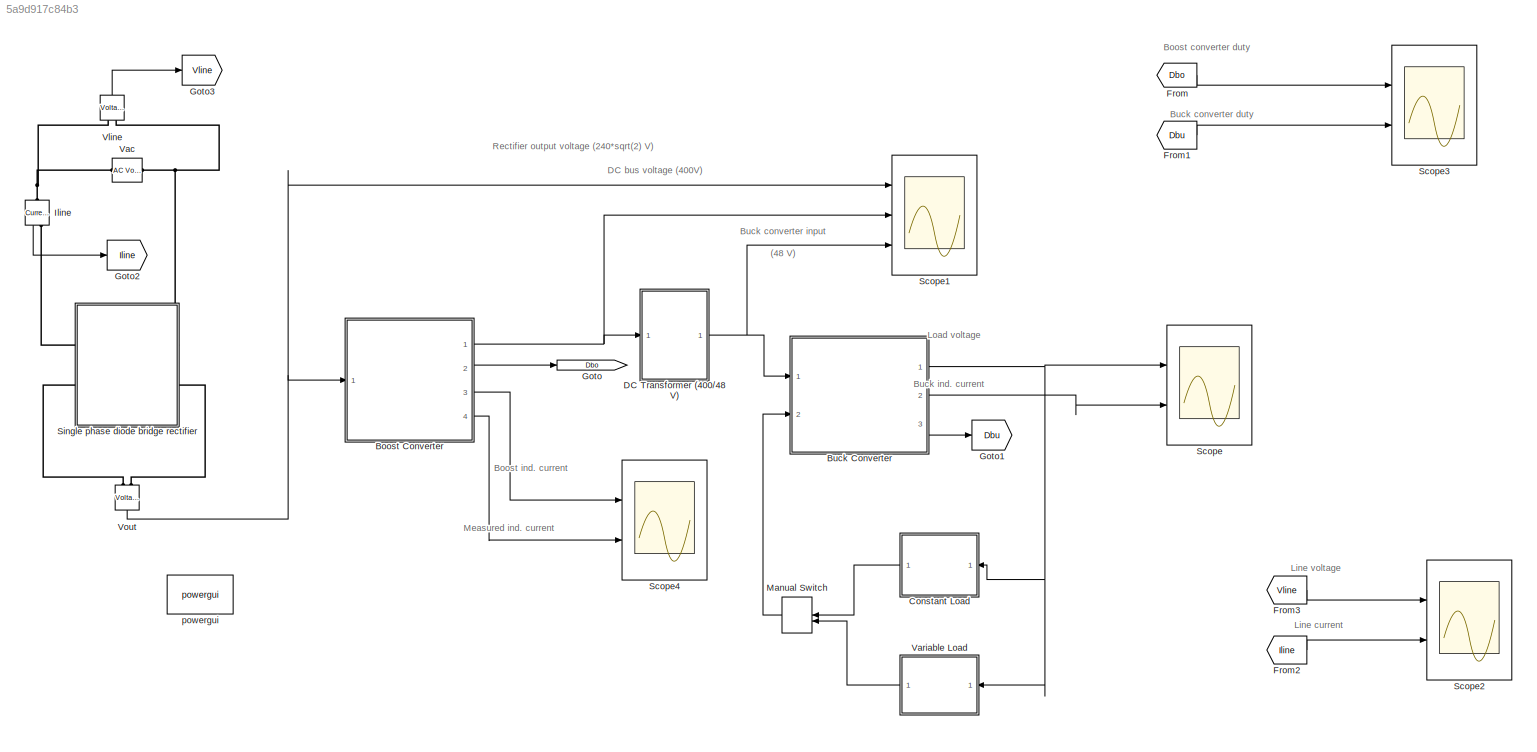
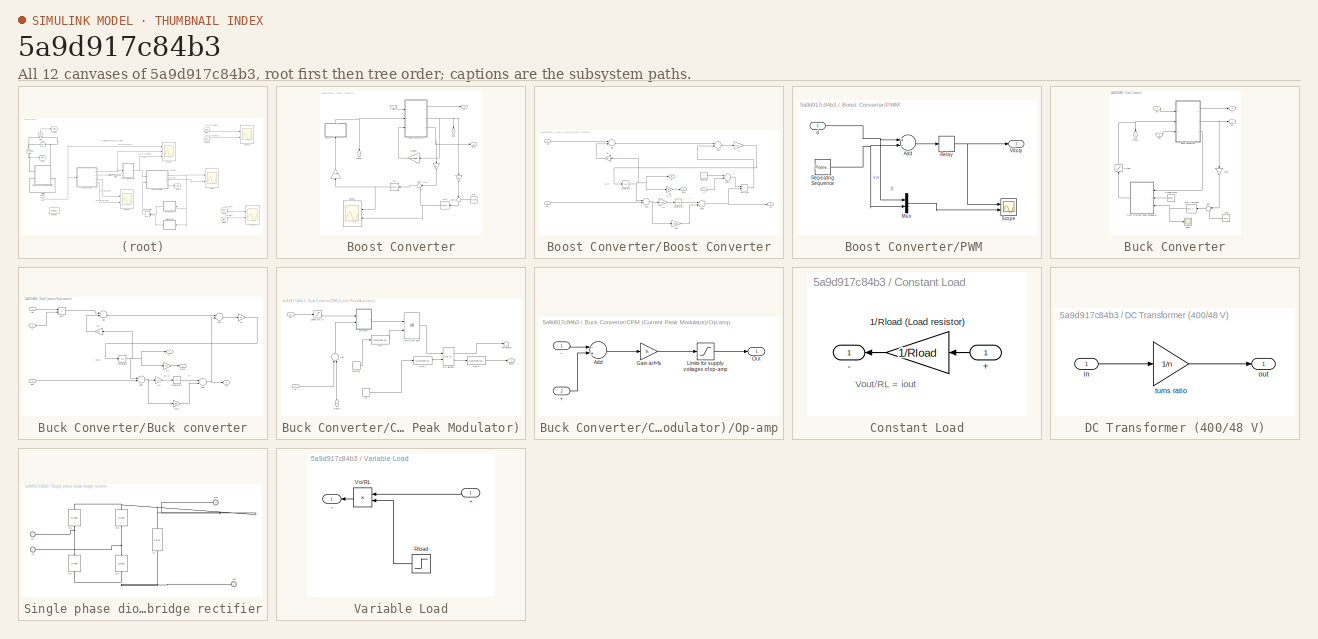
[diagram: thumbnail index - all 12 canvases of the model, root first then tree order]
MODEL slx_5a9d917c84b3
KIND model
CONFIG AbsTol = auto
CONFIG FixedStep = auto
CONFIG MaxStep = 1/fs1
CONFIG MinStep = auto
CONFIG RelTol = 1/fs
CONFIG SampleTimeConstraint = Unconstrained
CONFIG Solver = ode15s
CONFIG SolverMode = Auto
CONFIG SolverName = ode15s
CONFIG StartTime = 0.0
CONFIG StopTime = 0.2
BLOCK [SubSystem] Boost Converter
  Ports = [1, 4]
  RequestExecContextInheritance = off
  Variant = off
BLOCK [Gain] Boost Converter/  
  Gain = Rs1
  OutDataTypeStr = Inherit: Inherit via internal rule
  ParamDataTypeStr = Inherit: Inherit via internal rule
  SaturateOnIntegerOverflow = off
BLOCK [Gain] Boost Converter/     
  Gain = 1/VM
  OutDataTypeStr = Inherit: Inherit via internal rule
  ParamDataTypeStr = Inherit: Inherit via internal rule
  SaturateOnIntegerOverflow = off
BLOCK [Gain] Boost Converter/           
  Gain = H1
  OutDataTypeStr = Inherit: Inherit via internal rule
  ParamDataTypeStr = Inherit: Inherit via internal rule
  SaturateOnIntegerOverflow = off
BLOCK [Gain] Boost Converter/  1//Rload
  Gain = 1/Rload1
  OutDataTypeStr = Inherit: Inherit via internal rule
  ParamDataTypeStr = Inherit: Inherit via internal rule
  SaturateOnIntegerOverflow = off
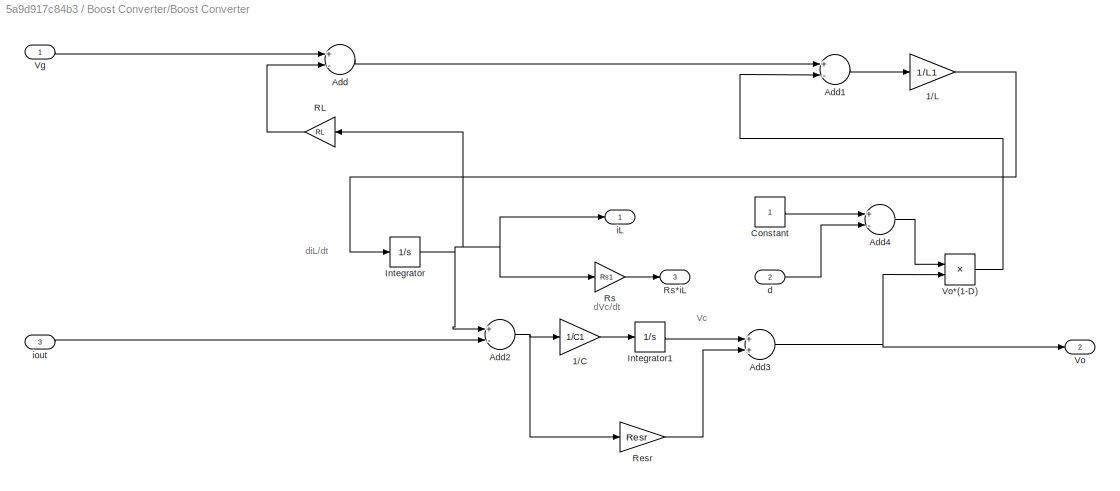
BLOCK [SubSystem] Boost Converter/Boost Converter
  Ports = [3, 3]
  RequestExecContextInheritance = off
  Variant = off
BLOCK [Gain] Boost Converter/Boost Converter/1//C
  Gain = 1/C1
  OutDataTypeStr = Inherit: Inherit via internal rule
  ParamDataTypeStr = Inherit: Inherit via internal rule
  SaturateOnIntegerOverflow = off
BLOCK [Gain] Boost Converter/Boost Converter/1//L
  Gain = 1/L1
  OutDataTypeStr = Inherit: Inherit via internal rule
  ParamDataTypeStr = Inherit: Inherit via internal rule
  SaturateOnIntegerOverflow = off
BLOCK [Sum] Boost Converter/Boost Converter/Add
  InputSameDT = off
  Inputs = +-
  OutDataTypeStr = Inherit: Inherit via internal rule
  Ports = [2, 1]
  SaturateOnIntegerOverflow = off
BLOCK [Sum] Boost Converter/Boost Converter/Add1
  InputSameDT = off
  Inputs = +-
  OutDataTypeStr = Inherit: Inherit via internal rule
  Ports = [2, 1]
  SaturateOnIntegerOverflow = off
BLOCK [Sum] Boost Converter/Boost Converter/Add2
  InputSameDT = off
  Inputs = +-
  OutDataTypeStr = Inherit: Inherit via internal rule
  Ports = [2, 1]
  SaturateOnIntegerOverflow = off
BLOCK [Sum] Boost Converter/Boost Converter/Add3
  InputSameDT = off
  OutDataTypeStr = Inherit: Inherit via internal rule
  Ports = [2, 1]
  SaturateOnIntegerOverflow = off
BLOCK [Sum] Boost Converter/Boost Converter/Add4
  InputSameDT = off
  Inputs = +-
  OutDataTypeStr = Inherit: Inherit via internal rule
  Ports = [2, 1]
  SaturateOnIntegerOverflow = off
BLOCK [Constant] Boost Converter/Boost Converter/Constant
BLOCK [Integrator] Boost Converter/Boost Converter/Integrator
  Ports = [1, 1]
BLOCK [Integrator] Boost Converter/Boost Converter/Integrator1
  Ports = [1, 1]
  UpperSaturationLimit = Vo
BLOCK [Gain] Boost Converter/Boost Converter/RL
  Gain = RL
  OutDataTypeStr = Inherit: Inherit via internal rule
  ParamDataTypeStr = Inherit: Inherit via internal rule
  SaturateOnIntegerOverflow = off
BLOCK [Gain] Boost Converter/Boost Converter/Resr
  Gain = Resr
  OutDataTypeStr = Inherit: Inherit via internal rule
  ParamDataTypeStr = Inherit: Inherit via internal rule
  SaturateOnIntegerOverflow = off
BLOCK [Gain] Boost Converter/Boost Converter/Rs
  Gain = Rs1
  OutDataTypeStr = Inherit: Inherit via internal rule
  ParamDataTypeStr = Inherit: Inherit via internal rule
  SaturateOnIntegerOverflow = off
BLOCK [Outport] Boost Converter/Boost Converter/Rs*iL
  IconDisplay = Port number
  Port = 3
BLOCK [Inport] Boost Converter/Boost Converter/Vg
  IconDisplay = Port number
BLOCK [Outport] Boost Converter/Boost Converter/Vo
  IconDisplay = Port number
  Port = 2
BLOCK [Product] Boost Converter/Boost Converter/Vo*(1-D)
  InputSameDT = off
  OutDataTypeStr = Inherit: Inherit via internal rule
  Ports = [2, 1]
  RndMeth = Floor
  SaturateOnIntegerOverflow = off
BLOCK [Inport] Boost Converter/Boost Converter/d
  IconDisplay = Port number
  Port = 2
BLOCK [Outport] Boost Converter/Boost Converter/iL
  IconDisplay = Port number
BLOCK [Inport] Boost Converter/Boost Converter/iout
  IconDisplay = Port number
  Port = 3
BLOCK [Outport] Boost Converter/Dboost
  IconDisplay = Port number
  Port = 2
BLOCK [Reference] Boost Converter/Gci  REF=simulink/Continuous/PID Controller
  Ports = [1, 1]
  SourceBlock = simulink/Continuous/PID Controller
  SourceType = PID 1dof
BLOCK [Reference] Boost Converter/Gcv  REF=simulink/Continuous/PID Controller
  Ports = [1, 1]
  SourceBlock = simulink/Continuous/PID Controller
  SourceType = PID 1dof
BLOCK [SubSystem] Boost Converter/PWM 
  Ports = [1, 1]
  RequestExecContextInheritance = off
  Variant = off
BLOCK [Sum] Boost Converter/PWM /Add
  InputSameDT = off
  Inputs = +-
  OutDataTypeStr = Inherit: Inherit via internal rule
  Ports = [2, 1]
  SaturateOnIntegerOverflow = off
BLOCK [Mux] Boost Converter/PWM /Mux
  DisplayOption = bar
  Inputs = 2
  Ports = [2, 1]
BLOCK [Relay] Boost Converter/PWM /Relay
  InputProcessing = Elements as channels (sample based)
  ZeroCross = off
BLOCK [Reference] Boost Converter/PWM /Repeating Sequence  REF=simulink/Sources/Repeating
Sequence
  Ports = [0, 1]
  SourceBlock = simulink/Sources/Repeating\nSequence
  SourceType = Repeating table
BLOCK [Scope] Boost Converter/PWM /Scope
  NumInputPorts = 2
  Ports = [2]
  ScopeSpecificationString = Simulink.scopes.TimeScopeBlockCfg('CurrentConfiguration', extmgr.ConfigurationSet(extmgr.Configuration('Core','General UI',true),extmgr.Configuration('Core','Source UI',true),extmgr.Configuration('Sources','WiredSimulink',true),extmgr.Configuration('Visuals','Time Domain',true,'SerializedDisplays',{struct('MinYLimReal','-0.25557','MaxYLimReal','1.06293','YLabelReal','','MinYLimMag','0.00000','MaxY...<+2031ch>
BLOCK [Outport] Boost Converter/PWM /Vduty
  IconDisplay = Port number
BLOCK [Inport] Boost Converter/PWM /d
  IconDisplay = Port number
BLOCK [Outport] Boost Converter/Rs*iL
  IconDisplay = Port number
  Port = 4
BLOCK [Scope] Boost Converter/Scope4
  NumInputPorts = 2
  Ports = [2]
  ScopeSpecificationString = Simulink.scopes.TimeScopeBlockCfg('CurrentConfiguration', extmgr.ConfigurationSet(extmgr.Configuration('Core','General UI',true),extmgr.Configuration('Core','Source UI',true),extmgr.Configuration('Sources','WiredSimulink',true,'DataLoggingVariableName','ScopeData2'),extmgr.Configuration('Visuals','Time Domain',true,'SerializedDisplays',{struct('MinYLimReal','0.02367','MaxYLimReal','0.16567','YLabe...<+2049ch>
BLOCK [Sum] Boost Converter/Sum
  IconShape = round
  InputSameDT = off
  Inputs = |-+
  OutDataTypeStr = Inherit: Inherit via internal rule
  Ports = [2, 1]
  SaturateOnIntegerOverflow = off
BLOCK [Sum] Boost Converter/Sum1
  IconShape = round
  InputSameDT = off
  Inputs = |-+
  OutDataTypeStr = Inherit: Inherit via internal rule
  Ports = [2, 1]
  SaturateOnIntegerOverflow = off
BLOCK [Inport] Boost Converter/Vin
  IconDisplay = Port number
BLOCK [Outport] Boost Converter/Vout
  IconDisplay = Port number
BLOCK [Constant] Boost Converter/Vref
  Value = H1*Vo1
BLOCK [Outport] Boost Converter/iL
  IconDisplay = Port number
  Port = 3
BLOCK [SubSystem] Buck Converter
  Ports = [2, 3]
  RequestExecContextInheritance = off
  Variant = off
BLOCK [Saturate] Buck Converter/0-1 limit
  InputPortMap = u0
  LowerLimit = 0
  Ports = [1, 1]
  UpperLimit = 1
BLOCK [Reference] Buck Converter/Artificial ramp  REF=simulink/Sources/Repeating
Sequence
  Ports = [0, 1]
  SourceBlock = simulink/Sources/Repeating\nSequence
  SourceType = Repeating table
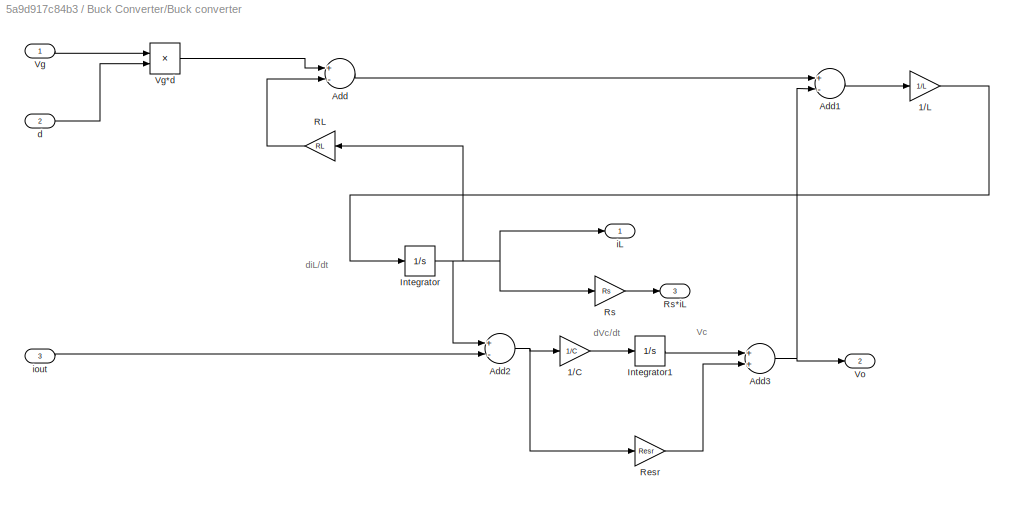
BLOCK [SubSystem] Buck Converter/Buck converter
  Ports = [3, 3]
  RequestExecContextInheritance = off
  Variant = off
BLOCK [Gain] Buck Converter/Buck converter/1//C
  Gain = 1/C
  OutDataTypeStr = Inherit: Inherit via internal rule
  ParamDataTypeStr = Inherit: Inherit via internal rule
  SaturateOnIntegerOverflow = off
BLOCK [Gain] Buck Converter/Buck converter/1//L
  Gain = 1/L
  OutDataTypeStr = Inherit: Inherit via internal rule
  ParamDataTypeStr = Inherit: Inherit via internal rule
  SaturateOnIntegerOverflow = off
BLOCK [Sum] Buck Converter/Buck converter/Add
  InputSameDT = off
  Inputs = +-
  OutDataTypeStr = Inherit: Inherit via internal rule
  Ports = [2, 1]
  SaturateOnIntegerOverflow = off
BLOCK [Sum] Buck Converter/Buck converter/Add1
  InputSameDT = off
  Inputs = +-
  OutDataTypeStr = Inherit: Inherit via internal rule
  Ports = [2, 1]
  SaturateOnIntegerOverflow = off
BLOCK [Sum] Buck Converter/Buck converter/Add2
  InputSameDT = off
  Inputs = +-
  OutDataTypeStr = Inherit: Inherit via internal rule
  Ports = [2, 1]
  SaturateOnIntegerOverflow = off
BLOCK [Sum] Buck Converter/Buck converter/Add3
  InputSameDT = off
  OutDataTypeStr = Inherit: Inherit via internal rule
  Ports = [2, 1]
  SaturateOnIntegerOverflow = off
BLOCK [Integrator] Buck Converter/Buck converter/Integrator
  Ports = [1, 1]
BLOCK [Integrator] Buck Converter/Buck converter/Integrator1
  Ports = [1, 1]
BLOCK [Gain] Buck Converter/Buck converter/RL
  Gain = RL
  OutDataTypeStr = Inherit: Inherit via internal rule
  ParamDataTypeStr = Inherit: Inherit via internal rule
  SaturateOnIntegerOverflow = off
BLOCK [Gain] Buck Converter/Buck converter/Resr
  Gain = Resr
  OutDataTypeStr = Inherit: Inherit via internal rule
  ParamDataTypeStr = Inherit: Inherit via internal rule
  SaturateOnIntegerOverflow = off
BLOCK [Gain] Buck Converter/Buck converter/Rs
  Gain = Rs
  OutDataTypeStr = Inherit: Inherit via internal rule
  ParamDataTypeStr = Inherit: Inherit via internal rule
  SaturateOnIntegerOverflow = off
BLOCK [Outport] Buck Converter/Buck converter/Rs*iL
  IconDisplay = Port number
  Port = 3
BLOCK [Inport] Buck Converter/Buck converter/Vg
  IconDisplay = Port number
BLOCK [Product] Buck Converter/Buck converter/Vg*d
  InputSameDT = off
  OutDataTypeStr = Inherit: Inherit via internal rule
  Ports = [2, 1]
  RndMeth = Floor
  SaturateOnIntegerOverflow = off
BLOCK [Outport] Buck Converter/Buck converter/Vo
  IconDisplay = Port number
  Port = 2
BLOCK [Inport] Buck Converter/Buck converter/d
  IconDisplay = Port number
  Port = 2
BLOCK [Outport] Buck Converter/Buck converter/iL
  IconDisplay = Port number
BLOCK [Inport] Buck Converter/Buck converter/iout
  IconDisplay = Port number
  Port = 3
BLOCK [SubSystem] Buck Converter/CPM (Current Peak Modulator)
  Ports = [3, 1]
  RequestExecContextInheritance = off
  Variant = off
BLOCK [Sum] Buck Converter/CPM (Current Peak Modulator)/Add
  InputSameDT = off
  OutDataTypeStr = Inherit: Inherit via internal rule
  Ports = [2, 1]
  SaturateOnIntegerOverflow = off
BLOCK [Logic] Buck Converter/CPM (Current Peak Modulator)/CMOS OR gate
  AllPortsSameDT = off
  Operator = OR
  OutDataTypeStr = boolean
  Ports = [2, 1]
BLOCK [DataTypeConversion] Buck Converter/CPM (Current Peak Modulator)/DTC
  LockScale = on
  OutDataTypeStr = boolean
  RndMeth = Floor
BLOCK [DataTypeConversion] Buck Converter/CPM (Current Peak Modulator)/DTC1
  LockScale = on
  OutDataTypeStr = boolean
  RndMeth = Floor
BLOCK [DataTypeConversion] Buck Converter/CPM (Current Peak Modulator)/DTC2
  LockScale = on
  OutDataTypeStr = double
  RndMeth = Floor
BLOCK [Saturate] Buck Converter/CPM (Current Peak Modulator)/Limits for Vc
  InputPortMap = u0
  LowerLimit = 0
  Ports = [1, 1]
  UpperLimit = Vcmax+Voffset
  ZeroCross = off
BLOCK [SubSystem] Buck Converter/CPM (Current Peak Modulator)/Op-amp
  Ports = [2, 1]
  RequestExecContextInheritance = off
  Variant = off
BLOCK [Inport] Buck Converter/CPM (Current Peak Modulator)/Op-amp/+
  IconDisplay = Port number
  Port = 2
BLOCK [Inport] Buck Converter/CPM (Current Peak Modulator)/Op-amp/-
  IconDisplay = Port number
BLOCK [Sum] Buck Converter/CPM (Current Peak Modulator)/Op-amp/Add
  InputSameDT = off
  Inputs = -+
  OutDataTypeStr = Inherit: Inherit via internal rule
  Ports = [2, 1]
  SaturateOnIntegerOverflow = off
BLOCK [Gain] Buck Converter/CPM (Current Peak Modulator)/Op-amp/Gain at f=fs
  Gain = fs
  OutDataTypeStr = Inherit: Inherit via internal rule
  ParamDataTypeStr = Inherit: Inherit via internal rule
  SaturateOnIntegerOverflow = off
BLOCK [Saturate] Buck Converter/CPM (Current Peak Modulator)/Op-amp/Limits for supply voltages of op-amp 
  InputPortMap = u0
  LowerLimit = 0
  Ports = [1, 1]
  UpperLimit = Vcc
BLOCK [Outport] Buck Converter/CPM (Current Peak Modulator)/Op-amp/Out
  IconDisplay = Port number
BLOCK [Outport] Buck Converter/CPM (Current Peak Modulator)/PWM
  IconDisplay = Port number
BLOCK [Reference] Buck Converter/CPM (Current Peak Modulator)/S-R Flip-Flop  REF=simulink_extras/Flip Flops/S-R
Flip-Flop
  Ports = [2, 2]
  SourceBlock = simulink_extras/Flip Flops/S-R\nFlip-Flop
  SourceType = SRFlipFlop
BLOCK [Terminator] Buck Converter/CPM (Current Peak Modulator)/Terminator
BLOCK [Inport] Buck Converter/CPM (Current Peak Modulator)/Vc
  IconDisplay = Port number
  Port = 3
BLOCK [Inport] Buck Converter/CPM (Current Peak Modulator)/Vramp
  IconDisplay = Port number
  Port = 2
BLOCK [Inport] Buck Converter/CPM (Current Peak Modulator)/Vs
  IconDisplay = Port number
BLOCK [DiscretePulseGenerator] Buck Converter/CPM (Current Peak Modulator)/clk
  Amplitude = 5
  Period = 1/fs
  Ports = [0, 1]
  PulseType = Time based
  PulseWidth = (Dmin+1e-10)*100
BLOCK [DiscretePulseGenerator] Buck Converter/CPM (Current Peak Modulator)/clk_dmax
  Amplitude = 5
  Period = 1/fs
  PhaseDelay = Dmax/fs
  Ports = [0, 1]
  PulseType = Time based
  PulseWidth = (1-Dmax)*100
BLOCK [Outport] Buck Converter/Dbuck
  IconDisplay = Port number
  Port = 3
BLOCK [Gain] Buck Converter/Gain
  Gain = H
  OutDataTypeStr = Inherit: Inherit via internal rule
  ParamDataTypeStr = Inherit: Inherit via internal rule
  SaturateOnIntegerOverflow = off
BLOCK [Outport] Buck Converter/IL
  IconDisplay = Port number
  Port = 2
BLOCK [Reference] Buck Converter/PID Controller  REF=simulink/Continuous/PID Controller
  Ports = [1, 1]
  SourceBlock = simulink/Continuous/PID Controller
  SourceType = PID 1dof
BLOCK [Scope] Buck Converter/Scope
  Ports = [1]
  ScopeSpecificationString = C++SS(StrPVP('SaveName','ScopeData3'))
BLOCK [Sum] Buck Converter/Sum
  IconShape = round
  InputSameDT = off
  Inputs = |-+
  OutDataTypeStr = Inherit: Inherit via internal rule
  Ports = [2, 1]
  SaturateOnIntegerOverflow = off
BLOCK [Inport] Buck Converter/Vg
  IconDisplay = Port number
BLOCK [Outport] Buck Converter/Vo
  IconDisplay = Port number
BLOCK [Constant] Buck Converter/Vref
  Value = Vo*H
BLOCK [Inport] Buck Converter/iout
  IconDisplay = Port number
  Port = 2
BLOCK [SubSystem] Constant Load
  Ports = [1, 1]
  RequestExecContextInheritance = off
  Variant = off
BLOCK [Inport] Constant Load/+
  IconDisplay = Port number
BLOCK [Outport] Constant Load/-
  IconDisplay = Port number
BLOCK [Gain] Constant Load/1//Rload (Load resistor)
  Gain = 1/Rload
  OutDataTypeStr = Inherit: Inherit via internal rule
  ParamDataTypeStr = Inherit: Inherit via internal rule
  SaturateOnIntegerOverflow = off
BLOCK [SubSystem] DC Transformer (400//48 V)
  Ports = [1, 1]
  RequestExecContextInheritance = off
  Variant = off
BLOCK [Inport] DC Transformer (400//48 V)/in
  IconDisplay = Port number
BLOCK [Outport] DC Transformer (400//48 V)/out
  IconDisplay = Port number
BLOCK [Gain] DC Transformer (400//48 V)/turns ratio
  Gain = 1/n
  OutDataTypeStr = Inherit: Inherit via internal rule
  ParamDataTypeStr = Inherit: Inherit via internal rule
  SaturateOnIntegerOverflow = off
BLOCK [From] From
  GotoTag = Dbo
BLOCK [From] From1
  GotoTag = Dbu
BLOCK [From] From2
  GotoTag = Iline
BLOCK [From] From3
  GotoTag = Vline
BLOCK [Goto] Goto
  GotoTag = Dbo
BLOCK [Goto] Goto1
  GotoTag = Dbu
BLOCK [Goto] Goto2
  GotoTag = Iline
BLOCK [Goto] Goto3
  GotoTag = Vline
BLOCK [Reference] Iline  REF=powerlib/Measurements/Current Measurement
  Ports = [0, 1, 0, 0, 0, 1, 1]
  SourceBlock = powerlib/Measurements/Current Measurement
  SourceType = Current Measurement
  UserDataPersistent = on
BLOCK [ManualSwitch] Manual Switch
  CurrentSetting = 0
BLOCK [Scope] Scope
  NumInputPorts = 2
  Ports = [2]
  ScopeSpecificationString = Simulink.scopes.TimeScopeBlockCfg('CurrentConfiguration', extmgr.ConfigurationSet(extmgr.Configuration('Core','General UI',true),extmgr.Configuration('Core','Source UI',true),extmgr.Configuration('Sources','WiredSimulink',true,'DataLoggingVariableName','ScopeData1'),extmgr.Configuration('Visuals','Time Domain',true,'SerializedDisplays',{struct('MinYLimReal','-2.70406','MaxYLimReal','24.33653','YLa...<+2081ch>
BLOCK [Scope] Scope1
  NumInputPorts = 3
  Ports = [3]
  ScopeSpecificationString = Simulink.scopes.TimeScopeBlockCfg('CurrentConfiguration', extmgr.ConfigurationSet(extmgr.Configuration('Core','General UI',true),extmgr.Configuration('Core','Source UI',true),extmgr.Configuration('Sources','WiredSimulink',true,'DataLoggingVariableName','ScopeData2'),extmgr.Configuration('Visuals','Time Domain',true,'SerializedDisplays',{struct('MinYLimReal','-42.25141','MaxYLimReal','380.26266','Y...<+2800ch>
BLOCK [Scope] Scope2
  NumInputPorts = 2
  Ports = [2]
  ScopeSpecificationString = Simulink.scopes.TimeScopeBlockCfg('CurrentConfiguration', extmgr.ConfigurationSet(extmgr.Configuration('Core','General UI',true),extmgr.Configuration('Core','Source UI',true),extmgr.Configuration('Sources','WiredSimulink',true,'DataLoggingVariableName','ScopeData3'),extmgr.Configuration('Visuals','Time Domain',true,'SerializedDisplays',{struct('MinYLimReal','-424.26407','MaxYLimReal','424.26407','...<+2061ch>
BLOCK [Scope] Scope3
  NumInputPorts = 2
  Ports = [2]
  ScopeSpecificationString = Simulink.scopes.TimeScopeBlockCfg('CurrentConfiguration', extmgr.ConfigurationSet(extmgr.Configuration('Core','General UI',true),extmgr.Configuration('Core','Source UI',true),extmgr.Configuration('Sources','WiredSimulink',true,'DataLoggingVariableName','ScopeData4'),extmgr.Configuration('Visuals','Time Domain',true,'SerializedDisplays',{struct('MinYLimReal','-0.04012','MaxYLimReal','1.11958','YLab...<+2410ch>
BLOCK [Scope] Scope4
  NumInputPorts = 2
  Ports = [2]
  ScopeSpecificationString = Simulink.scopes.TimeScopeBlockCfg('CurrentConfiguration', extmgr.ConfigurationSet(extmgr.Configuration('Core','General UI',true),extmgr.Configuration('Core','Source UI',true),extmgr.Configuration('Sources','WiredSimulink',true,'DataLoggingVariableName','ScopeData1'),extmgr.Configuration('Visuals','Time Domain',true,'SerializedDisplays',{struct('MinYLimReal','-26.90105','MaxYLimReal','57.93673','YL...<+2083ch>
BLOCK [SubSystem] Single phase diode bridge rectifier
  Ports = [0, 0, 0, 0, 0, 2, 2]
  RequestExecContextInheritance = off
  Variant = off
BLOCK [PMIOPort] Single phase diode bridge rectifier/+in
  Port = 1
  Side = Left
BLOCK [PMIOPort] Single phase diode bridge rectifier/+out
  Port = 3
  Side = Left
BLOCK [PMIOPort] Single phase diode bridge rectifier/-in
  Port = 2
  Side = Right
BLOCK [PMIOPort] Single phase diode bridge rectifier/-out
  Port = 4
  Side = Right
BLOCK [Reference] Single phase diode bridge rectifier/Cf  REF=powerlib/Elements/Series RLC Branch
  Ports = [0, 0, 0, 0, 0, 1, 1]
  SourceBlock = powerlib/Elements/Series RLC Branch
  SourceType = Series RLC Branch
BLOCK [Reference] Single phase diode bridge rectifier/D1  REF=powerlib/Power
Electronics/Diode
  Ports = [0, 0, 0, 0, 0, 1, 1]
  SourceBlock = powerlib/Power\nElectronics/Diode
  SourceType = Diode
BLOCK [Reference] Single phase diode bridge rectifier/D2  REF=powerlib/Power
Electronics/Diode
  Ports = [0, 0, 0, 0, 0, 1, 1]
  SourceBlock = powerlib/Power\nElectronics/Diode
  SourceType = Diode
BLOCK [Reference] Single phase diode bridge rectifier/D3  REF=powerlib/Power
Electronics/Diode
  Ports = [0, 0, 0, 0, 0, 1, 1]
  SourceBlock = powerlib/Power\nElectronics/Diode
  SourceType = Diode
BLOCK [Reference] Single phase diode bridge rectifier/D4  REF=powerlib/Power
Electronics/Diode
  Ports = [0, 0, 0, 0, 0, 1, 1]
  SourceBlock = powerlib/Power\nElectronics/Diode
  SourceType = Diode
BLOCK [Reference] Vac  REF=powerlib/Electrical
Sources/AC Voltage Source
  Ports = [0, 0, 0, 0, 0, 1, 1]
  SourceBlock = powerlib/Electrical\nSources/AC Voltage Source
  SourceType = AC Voltage Source
BLOCK [SubSystem] Variable Load
  Ports = [1, 1]
  RequestExecContextInheritance = off
  Variant = off
BLOCK [Inport] Variable Load/+
  IconDisplay = Port number
BLOCK [Outport] Variable Load/-
  IconDisplay = Port number
BLOCK [Step] Variable Load/Rload
  After = Rload/2
  Before = Rload
  SampleTime = 0
  Time = 0.1
BLOCK [Product] Variable Load/Vo//RL
  InputSameDT = off
  Inputs = */
  OutDataTypeStr = Inherit: Inherit via internal rule
  Ports = [2, 1]
  RndMeth = Floor
  SaturateOnIntegerOverflow = off
BLOCK [Reference] Vline  REF=powerlib/Measurements/Voltage Measurement
  Ports = [0, 1, 0, 0, 0, 2]
  SourceBlock = powerlib/Measurements/Voltage Measurement
  SourceType = Voltage Measurement
  UserDataPersistent = on
BLOCK [Reference] Vout  REF=powerlib/Measurements/Voltage Measurement
  Ports = [0, 1, 0, 0, 0, 2]
  SourceBlock = powerlib/Measurements/Voltage Measurement
  SourceType = Voltage Measurement
  UserDataPersistent = on
BLOCK [Reference] powergui  REF=powerlib/powergui
  Ports = []
  Priority = 1
  SourceBlock = powerlib/powergui
  SourceType = PSB option menu block
  UserDataPersistent = on
ANNOTATION (root): Boost converter duty
ANNOTATION (root): Boost ind. current
ANNOTATION (root): Buck ind. current
ANNOTATION (root): Buck converter duty
ANNOTATION (root): Buck converter input (48 V)
ANNOTATION (root): DC bus voltage (400V)
ANNOTATION (root): Line current
ANNOTATION (root): Line voltage
ANNOTATION (root): Load voltage
ANNOTATION (root): Measured ind. current
ANNOTATION (root): Rectifier output voltage (240*sqrt(2) V)
ANNOTATION Boost Converter: iL*Rs
ANNOTATION Boost Converter/Boost Converter: Vc
ANNOTATION Boost Converter/Boost Converter: dVc/dt
ANNOTATION Boost Converter/Boost Converter: diL/dt
ANNOTATION Boost Converter/PWM : d
ANNOTATION Buck Converter/Buck converter: Vc
ANNOTATION Buck Converter/Buck converter: dVc/dt
ANNOTATION Buck Converter/Buck converter: diL/dt
ANNOTATION Constant Load: Vout/RL = iout
LINE Boost Converter/           :1 -> Boost Converter/Sum1:1
LINE Boost Converter/     :1 -> Boost Converter/PWM :1
LINE Boost Converter/  1//Rload:1 -> Boost Converter/Boost Converter:3
LINE Boost Converter/  :1 -> Boost Converter/Sum:1
LINE Boost Converter/Boost Converter/1//C:1 -> Boost Converter/Boost Converter/Integrator1:1
LINE Boost Converter/Boost Converter/1//L:1 -> Boost Converter/Boost Converter/Integrator:1
LINE Boost Converter/Boost Converter/Add1:1 -> Boost Converter/Boost Converter/1//L:1
NET Boost Converter/Boost Converter/Add2:1 -> Boost Converter/Boost Converter/1//C:1, Boost Converter/Boost Converter/Resr:1
NET Boost Converter/Boost Converter/Add3:1 -> Boost Converter/Boost Converter/Vo*(1-D):2, Boost Converter/Boost Converter/Vo:1
LINE Boost Converter/Boost Converter/Add4:1 -> Boost Converter/Boost Converter/Vo*(1-D):1
LINE Boost Converter/Boost Converter/Add:1 -> Boost Converter/Boost Converter/Add1:1
LINE Boost Converter/Boost Converter/Constant:1 -> Boost Converter/Boost Converter/Add4:1
LINE Boost Converter/Boost Converter/Integrator1:1 -> Boost Converter/Boost Converter/Add3:1
NET Boost Converter/Boost Converter/Integrator:1 -> Boost Converter/Boost Converter/Add2:1, Boost Converter/Boost Converter/RL:1, Boost Converter/Boost Converter/Rs:1, Boost Converter/Boost Converter/iL:1
LINE Boost Converter/Boost Converter/RL:1 -> Boost Converter/Boost Converter/Add:2
LINE Boost Converter/Boost Converter/Resr:1 -> Boost Converter/Boost Converter/Add3:2
LINE Boost Converter/Boost Converter/Rs:1 -> Boost Converter/Boost Converter/Rs*iL:1
LINE Boost Converter/Boost Converter/Vg:1 -> Boost Converter/Boost Converter/Add:1
LINE Boost Converter/Boost Converter/Vo*(1-D):1 -> Boost Converter/Boost Converter/Add1:2
LINE Boost Converter/Boost Converter/d:1 -> Boost Converter/Boost Converter/Add4:2
LINE Boost Converter/Boost Converter/iout:1 -> Boost Converter/Boost Converter/Add2:2
LINE Boost Converter/Boost Converter:1 -> Boost Converter/iL:1
NET Boost Converter/Boost Converter:2 -> Boost Converter/           :1, Boost Converter/  1//Rload:1, Boost Converter/Vout:1
NET Boost Converter/Boost Converter:3 -> Boost Converter/  :1, Boost Converter/Rs*iL:1
NET Boost Converter/Gci:1 -> Boost Converter/     :1, Boost Converter/Scope4:1
NET Boost Converter/Gcv:1 -> Boost Converter/Scope4:2, Boost Converter/Sum:2
LINE Boost Converter/PWM /Add:1 -> Boost Converter/PWM /Relay:1
LINE Boost Converter/PWM /Mux:1 -> Boost Converter/PWM /Scope:2
NET Boost Converter/PWM /Relay:1 -> Boost Converter/PWM /Scope:1, Boost Converter/PWM /Vduty:1
NET Boost Converter/PWM /Repeating Sequence:1 -> Boost Converter/PWM /Add:2, Boost Converter/PWM /Mux:2
NET Boost Converter/PWM /d:1 -> Boost Converter/PWM /Add:1, Boost Converter/PWM /Mux:1
NET Boost Converter/PWM :1 -> Boost Converter/Boost Converter:2, Boost Converter/Dboost:1
LINE Boost Converter/Sum1:1 -> Boost Converter/Gcv:1
LINE Boost Converter/Sum:1 -> Boost Converter/Gci:1
LINE Boost Converter/Vin:1 -> Boost Converter/Boost Converter:1
LINE Boost Converter/Vref:1 -> Boost Converter/Sum1:2
NET Boost Converter:1 -> DC Transformer (400//48 V):1, Scope1:2
LINE Boost Converter:2 -> Goto:1
LINE Boost Converter:3 -> Scope4:1
LINE Boost Converter:4 -> Scope4:2
NET Buck Converter/0-1 limit:1 -> Buck Converter/Buck converter:2, Buck Converter/Dbuck:1
LINE Buck Converter/Artificial ramp:1 -> Buck Converter/CPM (Current Peak Modulator):2
LINE Buck Converter/Buck converter/1//C:1 -> Buck Converter/Buck converter/Integrator1:1
LINE Buck Converter/Buck converter/1//L:1 -> Buck Converter/Buck converter/Integrator:1
LINE Buck Converter/Buck converter/Add1:1 -> Buck Converter/Buck converter/1//L:1
NET Buck Converter/Buck converter/Add2:1 -> Buck Converter/Buck converter/1//C:1, Buck Converter/Buck converter/Resr:1
NET Buck Converter/Buck converter/Add3:1 -> Buck Converter/Buck converter/Add1:2, Buck Converter/Buck converter/Vo:1
LINE Buck Converter/Buck converter/Add:1 -> Buck Converter/Buck converter/Add1:1
LINE Buck Converter/Buck converter/Integrator1:1 -> Buck Converter/Buck converter/Add3:1
NET Buck Converter/Buck converter/Integrator:1 -> Buck Converter/Buck converter/Add2:1, Buck Converter/Buck converter/RL:1, Buck Converter/Buck converter/Rs:1, Buck Converter/Buck converter/iL:1
LINE Buck Converter/Buck converter/RL:1 -> Buck Converter/Buck converter/Add:2
LINE Buck Converter/Buck converter/Resr:1 -> Buck Converter/Buck converter/Add3:2
LINE Buck Converter/Buck converter/Rs:1 -> Buck Converter/Buck converter/Rs*iL:1
LINE Buck Converter/Buck converter/Vg*d:1 -> Buck Converter/Buck converter/Add:1
LINE Buck Converter/Buck converter/Vg:1 -> Buck Converter/Buck converter/Vg*d:1
LINE Buck Converter/Buck converter/d:1 -> Buck Converter/Buck converter/Vg*d:2
LINE Buck Converter/Buck converter/iout:1 -> Buck Converter/Buck converter/Add2:2
LINE Buck Converter/Buck converter:1 -> Buck Converter/IL:1
NET Buck Converter/Buck converter:2 -> Buck Converter/Gain:1, Buck Converter/Vo:1
LINE Buck Converter/Buck converter:3 -> Buck Converter/CPM (Current Peak Modulator):1
LINE Buck Converter/CPM (Current Peak Modulator)/Add:1 -> Buck Converter/CPM (Current Peak Modulator)/Op-amp:2
LINE Buck Converter/CPM (Current Peak Modulator)/CMOS OR gate:1 -> Buck Converter/CPM (Current Peak Modulator)/S-R Flip-Flop:1
LINE Buck Converter/CPM (Current Peak Modulator)/DTC1:1 -> Buck Converter/CPM (Current Peak Modulator)/S-R Flip-Flop:2
LINE Buck Converter/CPM (Current Peak Modulator)/DTC2:1 -> Buck Converter/CPM (Current Peak Modulator)/PWM:1
LINE Buck Converter/CPM (Current Peak Modulator)/DTC:1 -> Buck Converter/CPM (Current Peak Modulator)/CMOS OR gate:2
LINE Buck Converter/CPM (Current Peak Modulator)/Limits for Vc:1 -> Buck Converter/CPM (Current Peak Modulator)/Op-amp:1
LINE Buck Converter/CPM (Current Peak Modulator)/Op-amp/+:1 -> Buck Converter/CPM (Current Peak Modulator)/Op-amp/Add:2
LINE Buck Converter/CPM (Current Peak Modulator)/Op-amp/-:1 -> Buck Converter/CPM (Current Peak Modulator)/Op-amp/Add:1
LINE Buck Converter/CPM (Current Peak Modulator)/Op-amp/Add:1 -> Buck Converter/CPM (Current Peak Modulator)/Op-amp/Gain at f=fs:1
LINE Buck Converter/CPM (Current Peak Modulator)/Op-amp/Gain at f=fs:1 -> Buck Converter/CPM (Current Peak Modulator)/Op-amp/Limits for supply voltages of op-amp :1
LINE Buck Converter/CPM (Current Peak Modulator)/Op-amp/Limits for supply voltages of op-amp :1 -> Buck Converter/CPM (Current Peak Modulator)/Op-amp/Out:1
LINE Buck Converter/CPM (Current Peak Modulator)/Op-amp:1 -> Buck Converter/CPM (Current Peak Modulator)/CMOS OR gate:1
LINE Buck Converter/CPM (Current Peak Modulator)/S-R Flip-Flop:1 -> Buck Converter/CPM (Current Peak Modulator)/Terminator:1
LINE Buck Converter/CPM (Current Peak Modulator)/S-R Flip-Flop:2 -> Buck Converter/CPM (Current Peak Modulator)/DTC2:1
LINE Buck Converter/CPM (Current Peak Modulator)/Vc:1 -> Buck Converter/CPM (Current Peak Modulator)/Limits for Vc:1
LINE Buck Converter/CPM (Current Peak Modulator)/Vramp:1 -> Buck Converter/CPM (Current Peak Modulator)/Add:2
LINE Buck Converter/CPM (Current Peak Modulator)/Vs:1 -> Buck Converter/CPM (Current Peak Modulator)/Add:1
LINE Buck Converter/CPM (Current Peak Modulator)/clk:1 -> Buck Converter/CPM (Current Peak Modulator)/DTC1:1
LINE Buck Converter/CPM (Current Peak Modulator)/clk_dmax:1 -> Buck Converter/CPM (Current Peak Modulator)/DTC:1
LINE Buck Converter/CPM (Current Peak Modulator):1 -> Buck Converter/0-1 limit:1
LINE Buck Converter/Gain:1 -> Buck Converter/Sum:1
NET Buck Converter/PID Controller:1 -> Buck Converter/CPM (Current Peak Modulator):3, Buck Converter/Scope:1
LINE Buck Converter/Sum:1 -> Buck Converter/PID Controller:1
LINE Buck Converter/Vg:1 -> Buck Converter/Buck converter:1
LINE Buck Converter/Vref:1 -> Buck Converter/Sum:2
LINE Buck Converter/iout:1 -> Buck Converter/Buck converter:3
NET Buck Converter:1 -> Constant Load:1, Scope:1, Variable Load:1
LINE Buck Converter:2 -> Scope:2
LINE Buck Converter:3 -> Goto1:1
LINE Constant Load/+:1 -> Constant Load/1//Rload (Load resistor):1
LINE Constant Load/1//Rload (Load resistor):1 -> Constant Load/-:1
LINE Constant Load:1 -> Manual Switch:1
LINE DC Transformer (400//48 V)/in:1 -> DC Transformer (400//48 V)/turns ratio:1
LINE DC Transformer (400//48 V)/turns ratio:1 -> DC Transformer (400//48 V)/out:1
NET DC Transformer (400//48 V):1 -> Buck Converter:1, Scope1:3
LINE From1:1 -> Scope3:2
LINE From2:1 -> Scope2:2
LINE From3:1 -> Scope2:1
LINE From:1 -> Scope3:1
LINE Iline:1 -> Goto2:1
LINE Manual Switch:1 -> Buck Converter:2
LINE Variable Load/+:1 -> Variable Load/Vo//RL:1
LINE Variable Load/Rload:1 -> Variable Load/Vo//RL:2
LINE Variable Load/Vo//RL:1 -> Variable Load/-:1
LINE Variable Load:1 -> Manual Switch:2
LINE Vline:1 -> Goto3:1
NET Vout:1 -> Boost Converter:1, Scope1:1
PNET net1: Iline:LConn1 -- Vac:RConn1 -- Vline:LConn1
PLINE Iline:RConn1 -- Single phase diode bridge rectifier:LConn1
PNET net2: Single phase diode bridge rectifier/+in:RConn1 -- Single phase diode bridge rectifier/D1:LConn1 -- Single phase diode bridge rectifier/D3:RConn1
PNET net3: Single phase diode bridge rectifier/+out:RConn1 -- Single phase diode bridge rectifier/Cf:LConn1 -- Single phase diode bridge rectifier/D1:RConn1 -- Single phase diode bridge rectifier/D2:RConn1
PNET net4: Single phase diode bridge rectifier/-in:RConn1 -- Single phase diode bridge rectifier/D2:LConn1 -- Single phase diode bridge rectifier/D4:RConn1
PNET net5: Single phase diode bridge rectifier/-out:RConn1 -- Single phase diode bridge rectifier/Cf:RConn1 -- Single phase diode bridge rectifier/D3:LConn1 -- Single phase diode bridge rectifier/D4:LConn1
PLINE Single phase diode bridge rectifier:LConn2 -- Vout:LConn1
PNET net6: Single phase diode bridge rectifier:RConn1 -- Vac:LConn1 -- Vline:LConn2
PLINE Single phase diode bridge rectifier:RConn2 -- Vout:LConn2
note: NET lines group one-source signal fan-out (src -> all destinations, sorted); 1:1 wires keep LINE; PNET lines group multi-terminal physical nets as a canonical sorted terminal list (undirected conserving connections); 2-terminal nets keep the pairwise PLINE form
